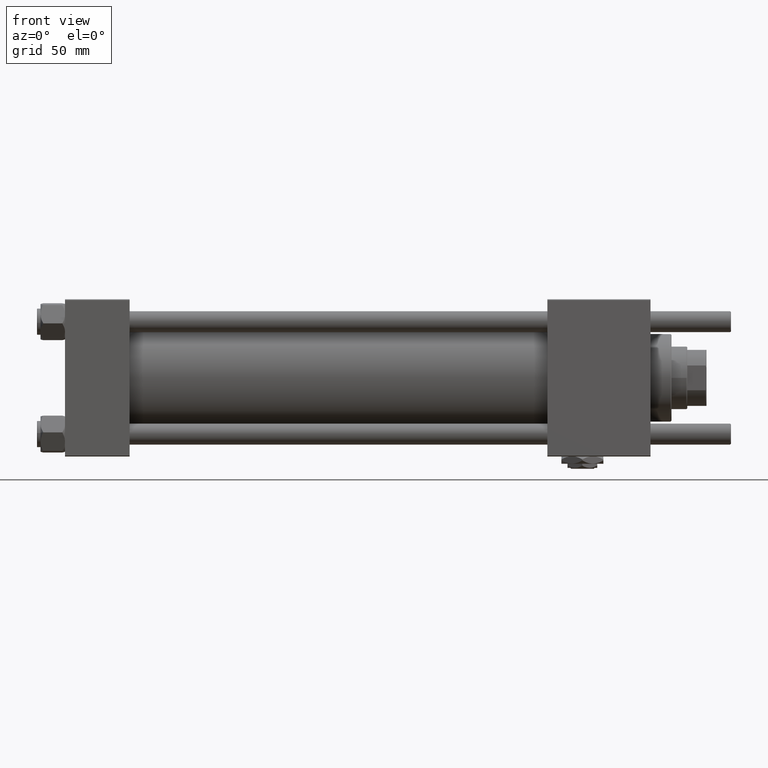
[diagram: clean part render]
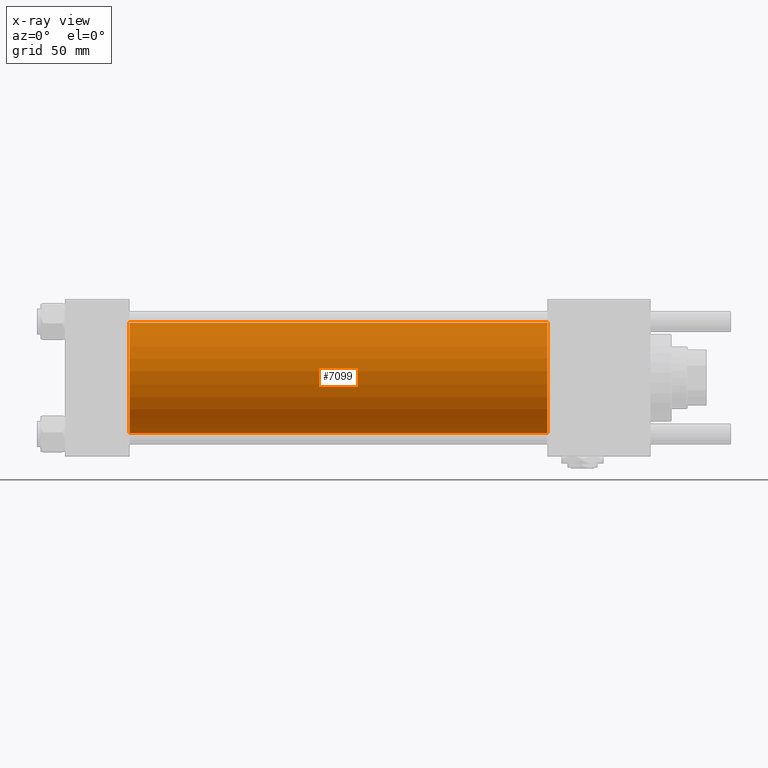
[diagram: x-ray — body ghosted, one internal face saturated and labeled with its STEP entity id]
A machine part, front view, then the same camera in x-ray: the body is ghosted and one INTERNAL B-rep face — a face not visible from any outside direction — is saturated and labeled: STEP entity #7099.
In plain terms, the highlighted cylindrical surface (partial cylindrical patch) has radius 31.5 mm, axis along (-1, -0, -0).
Its self-contained STEP definition (entity closure, byte-faithful):
#325 = DIRECTION ( 'NONE',  ( 0.000000000000000000, 0.000000000000000000, 1.000000000000000000 ) ) ;
#840 = VERTEX_POINT ( 'NONE', #19500 ) ;
#2391 = AXIS2_PLACEMENT_3D ( 'NONE', #13641, #22821, #325 ) ;
#2747 = AXIS2_PLACEMENT_3D ( 'NONE', #38039, #42777, #55455 ) ;
#4228 = DIRECTION ( 'NONE',  ( 1.000000000000000000, 0.000000000000000000, 0.000000000000000000 ) ) ;
#4977 = EDGE_CURVE ( 'NONE', #54974, #12229, #27840, .T. ) ;
#5146 = VECTOR ( 'NONE', #13609, 1000.000000000000000 ) ;
#5568 = EDGE_CURVE ( 'NONE', #12229, #32653, #40250, .T. ) ;
#7099 = ADVANCED_FACE ( 'NONE', ( #36136 ), #54120, .F. ) ;
#12220 = CARTESIAN_POINT ( 'NONE',  ( 275.9999999999999432, -2.602085213965210642E-15, 0.000000000000000000 ) ) ;
#12229 = VERTEX_POINT ( 'NONE', #48257 ) ;
#12858 = VECTOR ( 'NONE', #16022, 1000.000000000000000 ) ;
#13609 = DIRECTION ( 'NONE',  ( -1.000000000000000000, -0.000000000000000000, -0.000000000000000000 ) ) ;
#13641 = CARTESIAN_POINT ( 'NONE',  ( 275.9999999999999432, -2.602085213965210642E-15, 0.000000000000000000 ) ) ;
#16022 = DIRECTION ( 'NONE',  ( -1.000000000000000000, -0.000000000000000000, -0.000000000000000000 ) ) ;
#18367 = AXIS2_PLACEMENT_3D ( 'NONE', #12220, #4228, #57736 ) ;
#19427 = EDGE_CURVE ( 'NONE', #840, #32653, #55615, .T. ) ;
#19500 = CARTESIAN_POINT ( 'NONE',  ( 37.00000000000000000, -2.602085213965210642E-15, 31.50000000000000000 ) ) ;
#19583 = CARTESIAN_POINT ( 'NONE',  ( 275.9999999999999432, -2.602085213965210642E-15, 31.50000000000000000 ) ) ;
#21700 = ORIENTED_EDGE ( 'NONE', *, *, #4977, .T. ) ;
#22821 = DIRECTION ( 'NONE',  ( -1.000000000000000000, -0.000000000000000000, -0.000000000000000000 ) ) ;
#27811 = CARTESIAN_POINT ( 'NONE',  ( 275.9999999999999432, 1.255552203348951061E-15, -31.50000000000000000 ) ) ;
#27840 = CIRCLE ( 'NONE', #18367, 31.50000000000000000 ) ;
#32653 = VERTEX_POINT ( 'NONE', #45882 ) ;
#33229 = ORIENTED_EDGE ( 'NONE', *, *, #5568, .T. ) ;
#36136 = FACE_OUTER_BOUND ( 'NONE', #57459, .T. ) ;
#38039 = CARTESIAN_POINT ( 'NONE',  ( 37.00000000000000000, -2.602085213965210642E-15, 0.000000000000000000 ) ) ;
#38218 = LINE ( 'NONE', #19583, #12858 ) ;
#38574 = EDGE_CURVE ( 'NONE', #54974, #840, #38218, .T. ) ;
#39929 = ORIENTED_EDGE ( 'NONE', *, *, #38574, .F. ) ;
#40250 = LINE ( 'NONE', #27811, #5146 ) ;
#42777 = DIRECTION ( 'NONE',  ( 1.000000000000000000, 0.000000000000000000, 0.000000000000000000 ) ) ;
#45882 = CARTESIAN_POINT ( 'NONE',  ( 37.00000000000000000, 1.255552203348951061E-15, -31.50000000000000000 ) ) ;
#48257 = CARTESIAN_POINT ( 'NONE',  ( 275.9999999999999432, 1.255552203348951061E-15, -31.50000000000000000 ) ) ;
#54120 = CYLINDRICAL_SURFACE ( 'NONE', #2391, 31.50000000000000000 ) ;
#54421 = ORIENTED_EDGE ( 'NONE', *, *, #19427, .F. ) ;
#54974 = VERTEX_POINT ( 'NONE', #55790 ) ;
#55455 = DIRECTION ( 'NONE',  ( 0.000000000000000000, 0.000000000000000000, -1.000000000000000000 ) ) ;
#55615 = CIRCLE ( 'NONE', #2747, 31.50000000000000000 ) ;
#55790 = CARTESIAN_POINT ( 'NONE',  ( 275.9999999999999432, -2.602085213965210642E-15, 31.50000000000000000 ) ) ;
#57459 = EDGE_LOOP ( 'NONE', ( #21700, #33229, #54421, #39929 ) ) ;
#57736 = DIRECTION ( 'NONE',  ( 0.000000000000000000, 0.000000000000000000, -1.000000000000000000 ) ) ;